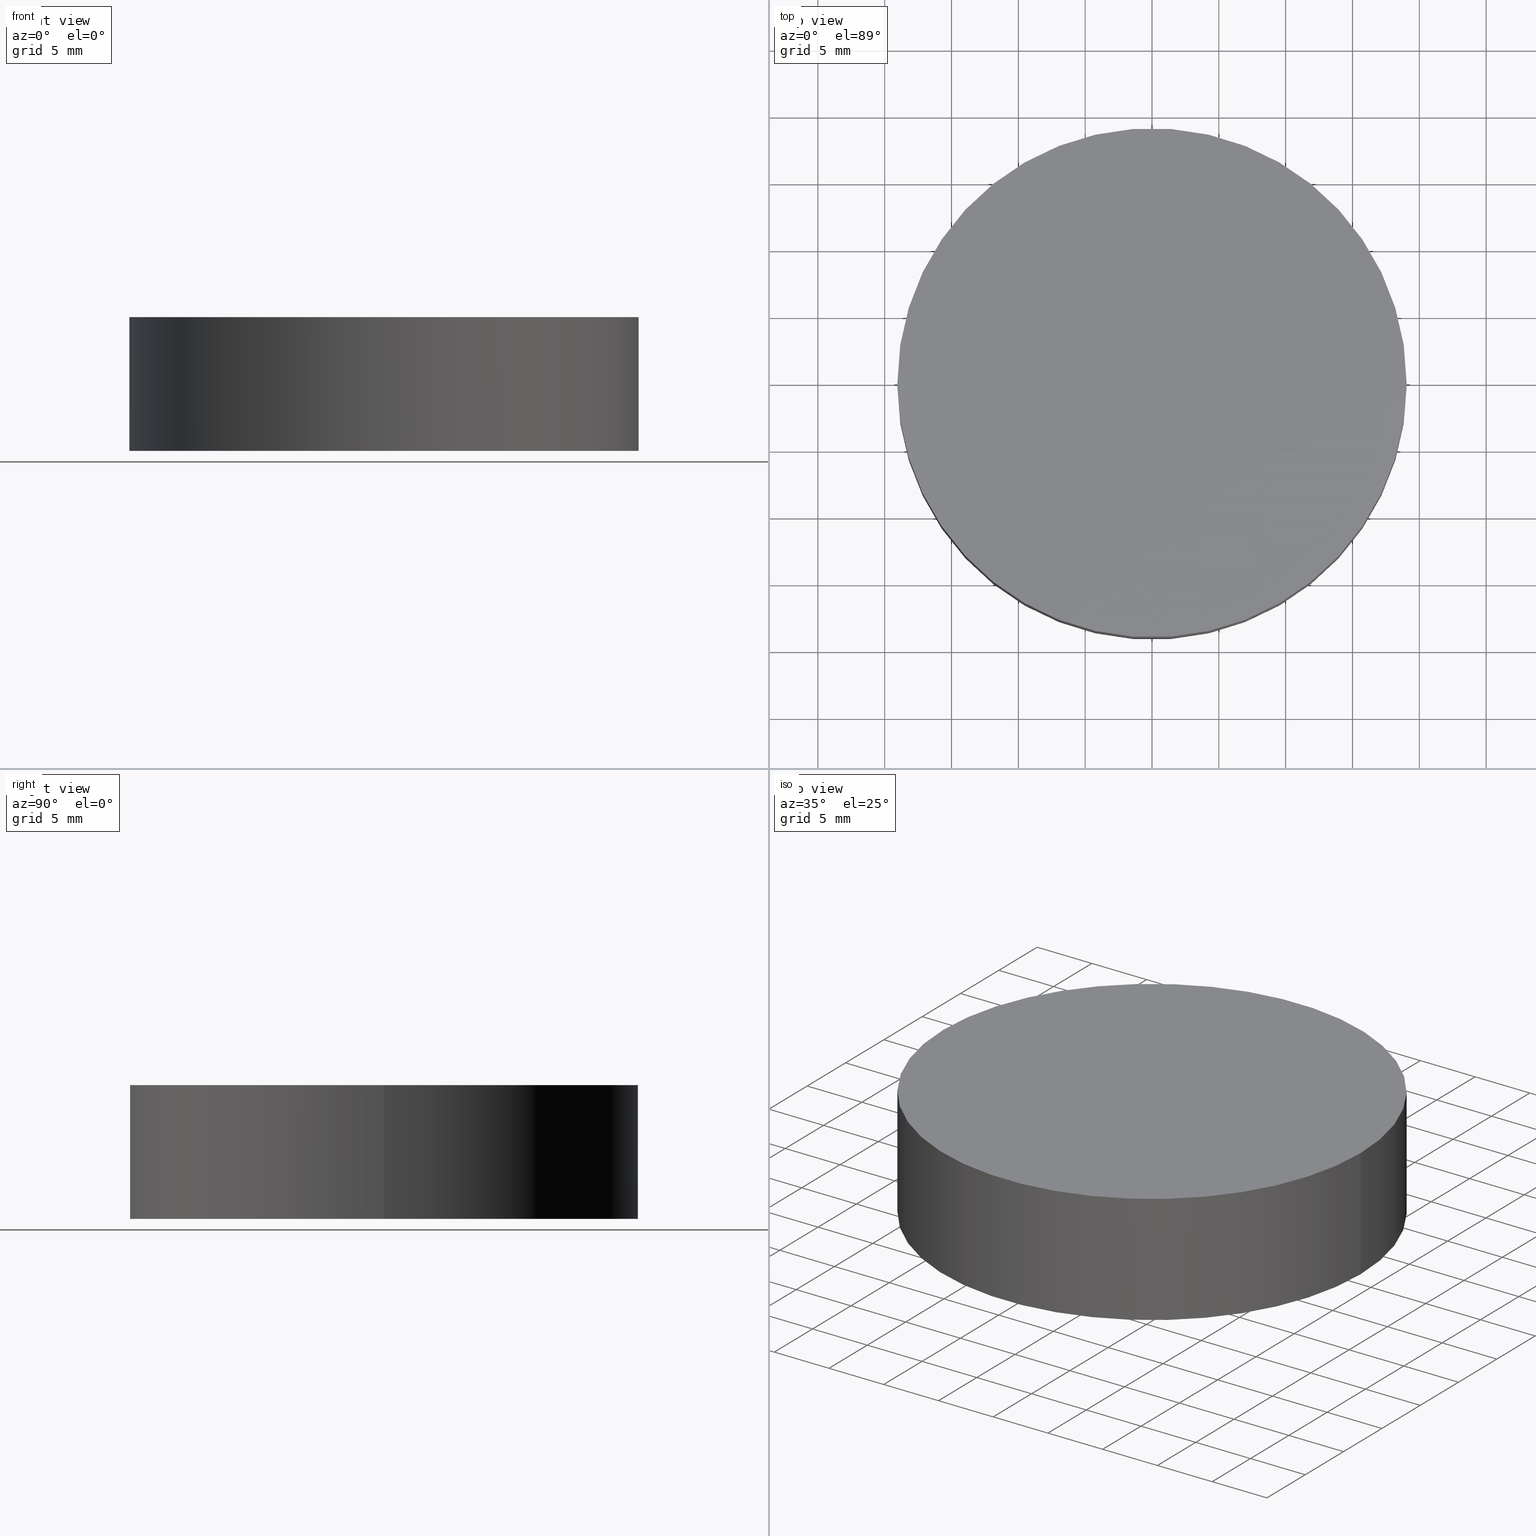
[diagram: canonical four-view strip — front | top / right | iso, engineering-drawing reading convention]
A machine part, canonical four-view strip (front | top / right | iso — engineering-drawing reading convention). The complete STEP part file that produces these views, byte-faithful:
ISO-10303-21;
HEADER;
FILE_DESCRIPTION (( 'STEP AP214' ),
    '1' );
FILE_NAME ('190063.STEP',
    '2019-07-16T03:42:26',
    ( 'user' ),
    ( '΢���й�' ),
    'SwSTEP 2.0',
    'SolidWorks 2016',
    '' );
FILE_SCHEMA (( 'AUTOMOTIVE_DESIGN' ));
ENDSEC;

DATA;
#1 = FACE_OUTER_BOUND ( 'NONE', #11, .T. ) ;
#2 = EDGE_LOOP ( 'NONE', ( #104, #57 ) ) ;
#3 = DIRECTION ( 'NONE',  ( 1.000000000000000000, 0.0000000000000000000, 0.0000000000000000000 ) ) ;
#4 = CARTESIAN_POINT ( 'NONE',  ( 0.0000000000000000000, 0.0000000000000000000, 0.0000000000000000000 ) ) ;
#5 = LINE ( 'NONE', #134, #117 ) ;
#6 = CARTESIAN_POINT ( 'NONE',  ( 0.0000000000000000000, 0.0000000000000000000, 0.0000000000000000000 ) ) ;
#7 = CLOSED_SHELL ( 'NONE', ( #86, #126, #32, #67 ) ) ;
#8 = CYLINDRICAL_SURFACE ( 'NONE', #20, 19.05000000000000100 ) ;
#9 = AXIS2_PLACEMENT_3D ( 'NONE', #109, #17, #122 ) ;
#10 = UNCERTAINTY_MEASURE_WITH_UNIT (LENGTH_MEASURE( 1.000000000000000100E-005 ), #42, 'distance_accuracy_value', 'NONE');
#11 = EDGE_LOOP ( 'NONE', ( #113, #28 ) ) ;
#12 = COLOUR_RGB ( '',1.000000000000000000, 1.000000000000000000, 1.000000000000000000 ) ;
#13 = CARTESIAN_POINT ( 'NONE',  ( 19.05000000000000100, 2.332952152375708000E-015, 10.00000000000000000 ) ) ;
#14 = VECTOR ( 'NONE', #40, 1000.000000000000000 ) ;
#15 = ORIENTED_EDGE ( 'NONE', *, *, #118, .T. ) ;
#16 = APPLICATION_PROTOCOL_DEFINITION ( 'draft international standard', 'automotive_design', 1998, #23 ) ;
#17 = DIRECTION ( 'NONE',  ( 0.0000000000000000000, 0.0000000000000000000, 1.000000000000000000 ) ) ;
#18 = AXIS2_PLACEMENT_3D ( 'NONE', #35, #66, #138 ) ;
#19 = DIRECTION ( 'NONE',  ( 0.0000000000000000000, 0.0000000000000000000, 1.000000000000000000 ) ) ;
#20 = AXIS2_PLACEMENT_3D ( 'NONE', #46, #54, #94 ) ;
#21 = APPLICATION_PROTOCOL_DEFINITION ( 'draft international standard', 'automotive_design', 1998, #72 ) ;
#22 = CARTESIAN_POINT ( 'NONE',  ( 19.05000000000000100, 2.332952152375708000E-015, 0.0000000000000000000 ) ) ;
#23 = APPLICATION_CONTEXT ( 'automotive_design' ) ;
#24 = PRODUCT_DEFINITION_CONTEXT ( 'detailed design', #72, 'design' ) ;
#25 = SURFACE_SIDE_STYLE ('',( #30 ) ) ;
#26 = UNCERTAINTY_MEASURE_WITH_UNIT (LENGTH_MEASURE( 1.000000000000000100E-005 ), #41, 'distance_accuracy_value', 'NONE');
#27 = PRESENTATION_STYLE_ASSIGNMENT (( #83 ) ) ;
#28 = ORIENTED_EDGE ( 'NONE', *, *, #61, .T. ) ;
#29 = AXIS2_PLACEMENT_3D ( 'NONE', #4, #45, #50 ) ;
#30 = SURFACE_STYLE_FILL_AREA ( #140 ) ;
#31 = FILL_AREA_STYLE ('',( #38 ) ) ;
#32 = ADVANCED_FACE ( 'NONE', ( #1 ), #68, .T. ) ;
#33 =( GEOMETRIC_REPRESENTATION_CONTEXT ( 3 ) GLOBAL_UNCERTAINTY_ASSIGNED_CONTEXT ( ( #76 ) ) GLOBAL_UNIT_ASSIGNED_CONTEXT ( ( #63, #114, #121 ) ) REPRESENTATION_CONTEXT ( 'NONE', 'WORKASPACE' ) );
#34 = DIRECTION ( 'NONE',  ( 1.000000000000000000, 0.0000000000000000000, -0.0000000000000000000 ) ) ;
#35 = CARTESIAN_POINT ( 'NONE',  ( 0.0000000000000000000, 0.0000000000000000000, 10.00000000000000000 ) ) ;
#36 =( NAMED_UNIT ( * ) SI_UNIT ( $, .STERADIAN. ) SOLID_ANGLE_UNIT ( ) );
#37 = EDGE_CURVE ( 'NONE', #115, #74, #130, .T. ) ;
#38 = FILL_AREA_STYLE_COLOUR ( '', #12 ) ;
#39 = DIRECTION ( 'NONE',  ( 0.0000000000000000000, 0.0000000000000000000, 1.000000000000000000 ) ) ;
#40 = DIRECTION ( 'NONE',  ( -0.0000000000000000000, -0.0000000000000000000, -1.000000000000000000 ) ) ;
#41 =( LENGTH_UNIT ( ) NAMED_UNIT ( * ) SI_UNIT ( .MILLI., .METRE. ) );
#42 =( LENGTH_UNIT ( ) NAMED_UNIT ( * ) SI_UNIT ( .MILLI., .METRE. ) );
#43 = DIRECTION ( 'NONE',  ( 1.000000000000000000, 0.0000000000000000000, 0.0000000000000000000 ) ) ;
#44 = VERTEX_POINT ( 'NONE', #139 ) ;
#45 = DIRECTION ( 'NONE',  ( 0.0000000000000000000, 0.0000000000000000000, 1.000000000000000000 ) ) ;
#46 = CARTESIAN_POINT ( 'NONE',  ( 0.0000000000000000000, 0.0000000000000000000, 10.00000000000000000 ) ) ;
#47 = STYLED_ITEM ( 'NONE', ( #120 ), #123 ) ;
#48 = AXIS2_PLACEMENT_3D ( 'NONE', #52, #19, #80 ) ;
#49 = ORIENTED_EDGE ( 'NONE', *, *, #73, .T. ) ;
#50 = DIRECTION ( 'NONE',  ( 1.000000000000000000, 0.0000000000000000000, 0.0000000000000000000 ) ) ;
#51 = FILL_AREA_STYLE_COLOUR ( '', #135 ) ;
#52 = CARTESIAN_POINT ( 'NONE',  ( 0.0000000000000000000, 0.0000000000000000000, 10.00000000000000000 ) ) ;
#53 = PRESENTATION_LAYER_ASSIGNMENT (  '', '', ( #47 ) ) ;
#54 = DIRECTION ( 'NONE',  ( -0.0000000000000000000, -0.0000000000000000000, -1.000000000000000000 ) ) ;
#55 = AXIS2_PLACEMENT_3D ( 'NONE', #6, #79, #3 ) ;
#56 = CIRCLE ( 'NONE', #9, 19.05000000000000100 ) ;
#57 = ORIENTED_EDGE ( 'NONE', *, *, #128, .F. ) ;
#58 = CARTESIAN_POINT ( 'NONE',  ( 19.05000000000000100, 2.332952152375708000E-015, 10.00000000000000000 ) ) ;
#59 = PRESENTATION_LAYER_ASSIGNMENT (  '', '', ( #62 ) ) ;
#60 = MECHANICAL_DESIGN_GEOMETRIC_PRESENTATION_REPRESENTATION (  '', ( #47 ), #64 ) ;
#61 = EDGE_CURVE ( 'NONE', #115, #44, #124, .T. ) ;
#62 = STYLED_ITEM ( 'NONE', ( #27 ), #96 ) ;
#63 =( LENGTH_UNIT ( ) NAMED_UNIT ( * ) SI_UNIT ( .MILLI., .METRE. ) );
#64 =( GEOMETRIC_REPRESENTATION_CONTEXT ( 3 ) GLOBAL_UNCERTAINTY_ASSIGNED_CONTEXT ( ( #26 ) ) GLOBAL_UNIT_ASSIGNED_CONTEXT ( ( #41, #105, #36 ) ) REPRESENTATION_CONTEXT ( 'NONE', 'WORKASPACE' ) );
#65 = CIRCLE ( 'NONE', #29, 19.05000000000000100 ) ;
#66 = DIRECTION ( 'NONE',  ( -0.0000000000000000000, -0.0000000000000000000, -1.000000000000000000 ) ) ;
#67 = ADVANCED_FACE ( 'NONE', ( #98 ), #125, .F. ) ;
#68 = PLANE ( 'NONE',  #110 ) ;
#69 = DIRECTION ( 'NONE',  ( -0.0000000000000000000, -0.0000000000000000000, -1.000000000000000000 ) ) ;
#70 = DIRECTION ( 'NONE',  ( 1.000000000000000000, 0.0000000000000000000, -0.0000000000000000000 ) ) ;
#71 = PRODUCT_CONTEXT ( 'NONE', #23, 'mechanical' ) ;
#72 = APPLICATION_CONTEXT ( 'automotive_design' ) ;
#73 = EDGE_CURVE ( 'NONE', #119, #74, #77, .T. ) ;
#74 = VERTEX_POINT ( 'NONE', #22 ) ;
#75 = ORIENTED_EDGE ( 'NONE', *, *, #137, .F. ) ;
#76 = UNCERTAINTY_MEASURE_WITH_UNIT (LENGTH_MEASURE( 1.000000000000000100E-005 ), #63, 'distance_accuracy_value', 'NONE');
#77 = CIRCLE ( 'NONE', #55, 19.05000000000000100 ) ;
#78 = EDGE_LOOP ( 'NONE', ( #99, #75, #15, #49 ) ) ;
#79 = DIRECTION ( 'NONE',  ( 0.0000000000000000000, 0.0000000000000000000, 1.000000000000000000 ) ) ;
#80 = DIRECTION ( 'NONE',  ( 1.000000000000000000, 0.0000000000000000000, 0.0000000000000000000 ) ) ;
#81 = DIRECTION ( 'NONE',  ( 0.0000000000000000000, 0.0000000000000000000, 1.000000000000000000 ) ) ;
#82 = CYLINDRICAL_SURFACE ( 'NONE', #18, 19.05000000000000100 ) ;
#83 = SURFACE_STYLE_USAGE ( .BOTH. , #25 ) ;
#84 = AXIS2_PLACEMENT_3D ( 'NONE', #90, #81, #43 ) ;
#85 = FACE_OUTER_BOUND ( 'NONE', #78, .T. ) ;
#86 = ADVANCED_FACE ( 'NONE', ( #103 ), #82, .T. ) ;
#87 = SURFACE_STYLE_USAGE ( .BOTH. , #132 ) ;
#88 = PRODUCT_DEFINITION ( 'δ֪', '', #93, #24 ) ;
#89 =( NAMED_UNIT ( * ) PLANE_ANGLE_UNIT ( ) SI_UNIT ( $, .RADIAN. ) );
#90 = CARTESIAN_POINT ( 'NONE',  ( 0.0000000000000000000, 0.0000000000000000000, 0.0000000000000000000 ) ) ;
#91 = ORIENTED_EDGE ( 'NONE', *, *, #128, .T. ) ;
#92 = PRODUCT_DEFINITION_SHAPE ( 'NONE', 'NONE',  #88 ) ;
#93 = PRODUCT_DEFINITION_FORMATION_WITH_SPECIFIED_SOURCE ( '�κ�', '', #100, .NOT_KNOWN. ) ;
#94 = DIRECTION ( 'NONE',  ( -1.000000000000000000, 0.0000000000000000000, 0.0000000000000000000 ) ) ;
#95 = ORIENTED_EDGE ( 'NONE', *, *, #118, .F. ) ;
#96 = MANIFOLD_SOLID_BREP ( '͹̨-����1', #7 ) ;
#97 =( NAMED_UNIT ( * ) SI_UNIT ( $, .STERADIAN. ) SOLID_ANGLE_UNIT ( ) );
#98 = FACE_OUTER_BOUND ( 'NONE', #2, .T. ) ;
#99 = ORIENTED_EDGE ( 'NONE', *, *, #37, .F. ) ;
#100 = PRODUCT ( '190063', '190063', '', ( #71 ) ) ;
#101 = AXIS2_PLACEMENT_3D ( 'NONE', #112, #133, #34 ) ;
#102 = PRODUCT_RELATED_PRODUCT_CATEGORY ( 'part', '', ( #100 ) ) ;
#103 = FACE_OUTER_BOUND ( 'NONE', #127, .T. ) ;
#104 = ORIENTED_EDGE ( 'NONE', *, *, #73, .F. ) ;
#105 =( NAMED_UNIT ( * ) PLANE_ANGLE_UNIT ( ) SI_UNIT ( $, .RADIAN. ) );
#106 = MECHANICAL_DESIGN_GEOMETRIC_PRESENTATION_REPRESENTATION (  '', ( #62 ), #116 ) ;
#107 = CARTESIAN_POINT ( 'NONE',  ( -19.05000000000000100, 0.0000000000000000000, 0.0000000000000000000 ) ) ;
#108 = SHAPE_DEFINITION_REPRESENTATION ( #92, #123 ) ;
#109 = CARTESIAN_POINT ( 'NONE',  ( 0.0000000000000000000, 0.0000000000000000000, 10.00000000000000000 ) ) ;
#110 = AXIS2_PLACEMENT_3D ( 'NONE', #111, #39, #70 ) ;
#111 = CARTESIAN_POINT ( 'NONE',  ( 0.0000000000000000000, 0.0000000000000000000, 10.00000000000000000 ) ) ;
#112 = CARTESIAN_POINT ( 'NONE',  ( 0.0000000000000000000, 0.0000000000000000000, 0.0000000000000000000 ) ) ;
#113 = ORIENTED_EDGE ( 'NONE', *, *, #137, .T. ) ;
#114 =( NAMED_UNIT ( * ) PLANE_ANGLE_UNIT ( ) SI_UNIT ( $, .RADIAN. ) );
#115 = VERTEX_POINT ( 'NONE', #13 ) ;
#116 =( GEOMETRIC_REPRESENTATION_CONTEXT ( 3 ) GLOBAL_UNCERTAINTY_ASSIGNED_CONTEXT ( ( #10 ) ) GLOBAL_UNIT_ASSIGNED_CONTEXT ( ( #42, #89, #97 ) ) REPRESENTATION_CONTEXT ( 'NONE', 'WORKASPACE' ) );
#117 = VECTOR ( 'NONE', #69, 1000.000000000000000 ) ;
#118 = EDGE_CURVE ( 'NONE', #44, #119, #5, .T. ) ;
#119 = VERTEX_POINT ( 'NONE', #107 ) ;
#120 = PRESENTATION_STYLE_ASSIGNMENT (( #87 ) ) ;
#121 =( NAMED_UNIT ( * ) SI_UNIT ( $, .STERADIAN. ) SOLID_ANGLE_UNIT ( ) );
#122 = DIRECTION ( 'NONE',  ( 1.000000000000000000, 0.0000000000000000000, 0.0000000000000000000 ) ) ;
#123 = ADVANCED_BREP_SHAPE_REPRESENTATION ( '190063', ( #96, #84 ), #33 ) ;
#124 = CIRCLE ( 'NONE', #48, 19.05000000000000100 ) ;
#125 = PLANE ( 'NONE',  #101 ) ;
#126 = ADVANCED_FACE ( 'NONE', ( #85 ), #8, .T. ) ;
#127 = EDGE_LOOP ( 'NONE', ( #131, #136, #91, #95 ) ) ;
#128 = EDGE_CURVE ( 'NONE', #74, #119, #65, .T. ) ;
#129 = SURFACE_STYLE_FILL_AREA ( #31 ) ;
#130 = LINE ( 'NONE', #58, #14 ) ;
#131 = ORIENTED_EDGE ( 'NONE', *, *, #61, .F. ) ;
#132 = SURFACE_SIDE_STYLE ('',( #129 ) ) ;
#133 = DIRECTION ( 'NONE',  ( 0.0000000000000000000, 0.0000000000000000000, 1.000000000000000000 ) ) ;
#134 = CARTESIAN_POINT ( 'NONE',  ( -19.05000000000000100, 0.0000000000000000000, 10.00000000000000000 ) ) ;
#135 = COLOUR_RGB ( '',1.000000000000000000, 1.000000000000000000, 1.000000000000000000 ) ;
#136 = ORIENTED_EDGE ( 'NONE', *, *, #37, .T. ) ;
#137 = EDGE_CURVE ( 'NONE', #44, #115, #56, .T. ) ;
#138 = DIRECTION ( 'NONE',  ( -1.000000000000000000, 0.0000000000000000000, 0.0000000000000000000 ) ) ;
#139 = CARTESIAN_POINT ( 'NONE',  ( -19.05000000000000100, 0.0000000000000000000, 10.00000000000000000 ) ) ;
#140 = FILL_AREA_STYLE ('',( #51 ) ) ;
ENDSEC;
END-ISO-10303-21;
